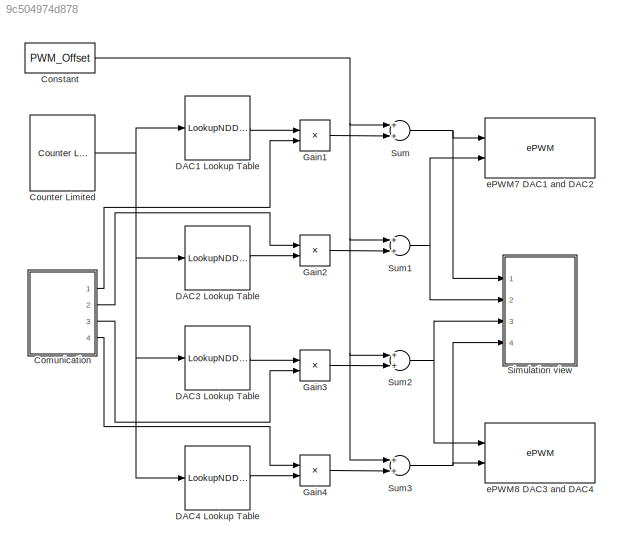
MODEL slx_9c504974d878
KIND model
CONFIG AbsTol = auto
CONFIG FixedStep = auto
CONFIG InitFcn = SignalGen_Settings
CONFIG MaxStep = auto
CONFIG MinStep = auto
CONFIG RelTol = 1e-3
CONFIG SampleTimeConstraint = Unconstrained
CONFIG Solver = FixedStepDiscrete
CONFIG SolverMode = Auto
CONFIG SolverName = FixedStepDiscrete
CONFIG StartTime = 0.0
CONFIG StopTime = 0.0333333
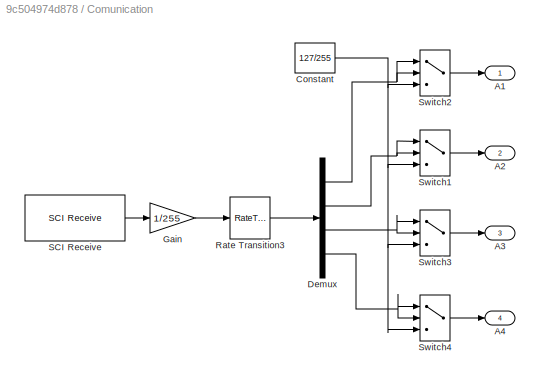
BLOCK [SubSystem] Comunication
  Ports = [0, 4]
  RequestExecContextInheritance = off
  Variant = off
BLOCK [Outport] Comunication/A1
  IconDisplay = Port number
BLOCK [Outport] Comunication/A2
  IconDisplay = Port number
  Port = 2
BLOCK [Outport] Comunication/A3
  IconDisplay = Port number
  Port = 3
BLOCK [Outport] Comunication/A4
  IconDisplay = Port number
  Port = 4
BLOCK [Constant] Comunication/Constant
  Value = 127/255
BLOCK [Demux] Comunication/Demux
  DisplayOption = bar
  Ports = [1, 4]
BLOCK [Gain] Comunication/Gain
  Gain = 1/255
  OutDataTypeStr = Inherit: Inherit via internal rule
  ParamDataTypeStr = Inherit: Inherit via internal rule
  SaturateOnIntegerOverflow = off
BLOCK [RateTransition] Comunication/Rate Transition3
  Integrity = off
BLOCK [Reference] Comunication/SCI Receive  REF=c280xlib/SCI Receive
  Ports = [0, 1]
  SourceBlock = c280xlib/SCI Receive
  SourceType = C28x SCI Receive
BLOCK [Switch] Comunication/Switch1
  Criteria = u2 ~= 0
  InputSameDT = off
  SaturateOnIntegerOverflow = off
BLOCK [Switch] Comunication/Switch2
  Criteria = u2 ~= 0
  InputSameDT = off
  SaturateOnIntegerOverflow = off
BLOCK [Switch] Comunication/Switch3
  Criteria = u2 ~= 0
  InputSameDT = off
  SaturateOnIntegerOverflow = off
BLOCK [Switch] Comunication/Switch4
  Criteria = u2 ~= 0
  InputSameDT = off
  SaturateOnIntegerOverflow = off
BLOCK [Constant] Constant
  Value = PWM_Offset
BLOCK [Reference] Counter Limited  REF=simulink/Sources/Counter
Limited
  Ports = [0, 1]
  SourceBlock = simulink/Sources/Counter\nLimited
  SourceType = Counter Limited
BLOCK [LookupNDDirect] DAC1 Lookup Table
  NumberOfTableDimensions = 1
  Ports = [1, 1]
  Table = DAC1-PWM_Offset
BLOCK [LookupNDDirect] DAC2 Lookup Table
  NumberOfTableDimensions = 1
  Ports = [1, 1]
  Table = DAC2-PWM_Offset
BLOCK [LookupNDDirect] DAC3 Lookup Table 
  NumberOfTableDimensions = 1
  Ports = [1, 1]
  Table = DAC3-PWM_Offset
BLOCK [LookupNDDirect] DAC4 Lookup Table
  NumberOfTableDimensions = 1
  Ports = [1, 1]
  Table = DAC4-PWM_Offset
BLOCK [Product] Gain1
  InputSameDT = off
  OutDataTypeStr = Inherit: Inherit via internal rule
  Ports = [2, 1]
  RndMeth = Floor
  SaturateOnIntegerOverflow = off
BLOCK [Product] Gain2
  InputSameDT = off
  OutDataTypeStr = Inherit: Inherit via internal rule
  Ports = [2, 1]
  RndMeth = Floor
  SaturateOnIntegerOverflow = off
BLOCK [Product] Gain3
  InputSameDT = off
  OutDataTypeStr = Inherit: Inherit via internal rule
  Ports = [2, 1]
  RndMeth = Floor
  SaturateOnIntegerOverflow = off
BLOCK [Product] Gain4
  InputSameDT = off
  OutDataTypeStr = Inherit: Inherit via internal rule
  Ports = [2, 1]
  RndMeth = Floor
  SaturateOnIntegerOverflow = off
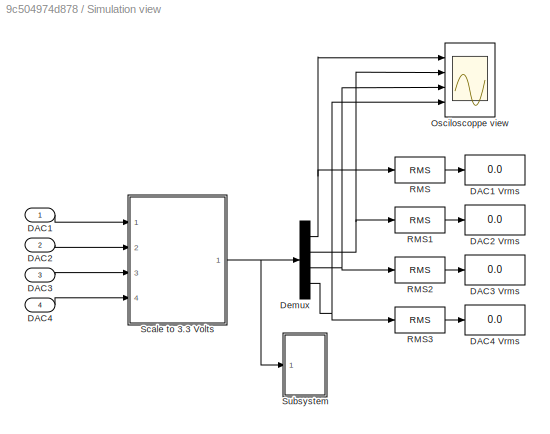
BLOCK [SubSystem] Simulation view
  Ports = [4]
  RequestExecContextInheritance = off
  Variant = off
BLOCK [Inport] Simulation view/DAC1
  IconDisplay = Port number
BLOCK [Display] Simulation view/DAC1 Vrms
  Decimation = 1
  Ports = [1]
BLOCK [Inport] Simulation view/DAC2
  IconDisplay = Port number
  Port = 2
BLOCK [Display] Simulation view/DAC2 Vrms
  Decimation = 1
  Ports = [1]
BLOCK [Inport] Simulation view/DAC3
  IconDisplay = Port number
  Port = 3
BLOCK [Display] Simulation view/DAC3 Vrms
  Decimation = 1
  Ports = [1]
BLOCK [Inport] Simulation view/DAC4
  IconDisplay = Port number
  Port = 4
BLOCK [Display] Simulation view/DAC4 Vrms
  Decimation = 1
  Ports = [1]
BLOCK [Demux] Simulation view/Demux
  DisplayOption = bar
  Ports = [1, 4]
BLOCK [Scope] Simulation view/Osciloscoppe view
  NumInputPorts = 4
  Ports = [4]
  ScopeSpecificationString = Simulink.scopes.TimeScopeBlockCfg('CurrentConfiguration', extmgr.ConfigurationSet(extmgr.Configuration('Core','General UI',true),extmgr.Configuration('Core','Source UI',true),extmgr.Configuration('Sources','WiredSimulink',true,'DataLoggingLimitDataPoints',true,'DataLoggingMaxPoints','500000'),extmgr.Configuration('Visuals','Time Domain',true,'SerializedDisplays',{struct('MinYLimReal','-0.91552','M...<+3621ch>
BLOCK [Reference] Simulation view/RMS  REF=dspstat3/RMS
  Ports = [1, 1]
  SourceBlock = dspstat3/RMS
  SourceType = RMS
  UserDataPersistent = on
BLOCK [Reference] Simulation view/RMS1  REF=dspstat3/RMS
  Ports = [1, 1]
  SourceBlock = dspstat3/RMS
  SourceType = RMS
  UserDataPersistent = on
BLOCK [Reference] Simulation view/RMS2  REF=dspstat3/RMS
  Ports = [1, 1]
  SourceBlock = dspstat3/RMS
  SourceType = RMS
  UserDataPersistent = on
BLOCK [Reference] Simulation view/RMS3  REF=dspstat3/RMS
  Ports = [1, 1]
  SourceBlock = dspstat3/RMS
  SourceType = RMS
  UserDataPersistent = on
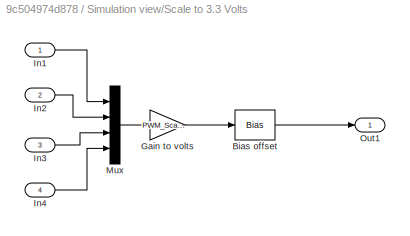
BLOCK [SubSystem] Simulation view/Scale to 3.3 Volts
  Ports = [4, 1]
  RequestExecContextInheritance = off
  Variant = off
BLOCK [Bias] Simulation view/Scale to 3.3 Volts/Bias offset
  Bias = -PWM_Max_Voltage/2
  SaturateOnIntegerOverflow = off
BLOCK [Gain] Simulation view/Scale to 3.3 Volts/Gain to volts
  Gain = PWM_Scale
  OutDataTypeStr = single
  ParamDataTypeStr = Inherit: Inherit via internal rule
  SaturateOnIntegerOverflow = off
BLOCK [Inport] Simulation view/Scale to 3.3 Volts/In1
  IconDisplay = Port number
BLOCK [Inport] Simulation view/Scale to 3.3 Volts/In2
  IconDisplay = Port number
  Port = 2
BLOCK [Inport] Simulation view/Scale to 3.3 Volts/In3
  IconDisplay = Port number
  Port = 3
BLOCK [Inport] Simulation view/Scale to 3.3 Volts/In4
  IconDisplay = Port number
  Port = 4
BLOCK [Mux] Simulation view/Scale to 3.3 Volts/Mux
  DisplayOption = bar
  Ports = [4, 1]
BLOCK [Outport] Simulation view/Scale to 3.3 Volts/Out1
  IconDisplay = Port number
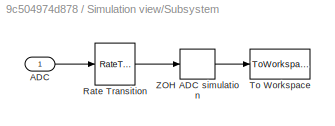
BLOCK [SubSystem] Simulation view/Subsystem
  Ports = [1]
  RequestExecContextInheritance = off
  Variant = off
BLOCK [Inport] Simulation view/Subsystem/ADC
  IconDisplay = Port number
BLOCK [RateTransition] Simulation view/Subsystem/Rate Transition
  Integrity = off
BLOCK [ToWorkspace] Simulation view/Subsystem/To Workspace
  FixptAsFi = on
  MaxDataPoints = inf
  Ports = [1]
  SampleTime = -1
  Save2DSignal = 3-D array (concatenate along third dimension)
  SaveFormat = Structure With Time
  VariableName = out
BLOCK [ZeroOrderHold] Simulation view/Subsystem/ZOH ADC simulation
  SampleTime = 1/(60*256)
BLOCK [Sum] Sum
  AccumDataTypeStr = Inherit: Same as first input
  InputSameDT = off
  OutDataTypeStr = uint16
  Ports = [2, 1]
  SaturateOnIntegerOverflow = off
BLOCK [Sum] Sum1
  InputSameDT = off
  OutDataTypeStr = uint16
  Ports = [2, 1]
  SaturateOnIntegerOverflow = off
BLOCK [Sum] Sum2
  InputSameDT = off
  OutDataTypeStr = uint16
  Ports = [2, 1]
  SaturateOnIntegerOverflow = off
BLOCK [Sum] Sum3
  InputSameDT = off
  OutDataTypeStr = uint16
  Ports = [2, 1]
  SaturateOnIntegerOverflow = off
BLOCK [Reference] ePWM7 DAC1 and DAC2  REF=c2802xlib/ePWM
  Ports = [2]
  SourceBlock = c2802xlib/ePWM
  SourceType = C2802x/03x/05x/06x/M3x/37x/07x ePWM
  UserDataPersistent = on
BLOCK [Reference] ePWM8 DAC3 and DAC4  REF=c2802xlib/ePWM
  Ports = [2]
  SourceBlock = c2802xlib/ePWM
  SourceType = C2802x/03x/05x/06x/M3x/37x/07x ePWM
  UserDataPersistent = on
NET Comunication/Constant:1 -> Comunication/Switch1:3, Comunication/Switch2:3, Comunication/Switch3:3, Comunication/Switch4:3
NET Comunication/Demux:1 -> Comunication/Switch2:1, Comunication/Switch2:2
NET Comunication/Demux:2 -> Comunication/Switch1:1, Comunication/Switch1:2
NET Comunication/Demux:3 -> Comunication/Switch3:1, Comunication/Switch3:2
NET Comunication/Demux:4 -> Comunication/Switch4:1, Comunication/Switch4:2
LINE Comunication/Gain:1 -> Comunication/Rate Transition3:1
LINE Comunication/Rate Transition3:1 -> Comunication/Demux:1
LINE Comunication/SCI Receive:1 -> Comunication/Gain:1
LINE Comunication/Switch1:1 -> Comunication/A2:1
LINE Comunication/Switch2:1 -> Comunication/A1:1
LINE Comunication/Switch3:1 -> Comunication/A3:1
LINE Comunication/Switch4:1 -> Comunication/A4:1
LINE Comunication:1 -> Gain1:2
LINE Comunication:2 -> Gain2:1
LINE Comunication:3 -> Gain3:2
LINE Comunication:4 -> Gain4:1
NET Constant:1 -> Sum1:1, Sum2:1, Sum3:1, Sum:1
NET Counter Limited:1 -> DAC1 Lookup Table:1, DAC2 Lookup Table:1, DAC3 Lookup Table :1, DAC4 Lookup Table:1
LINE DAC1 Lookup Table:1 -> Gain1:1
LINE DAC2 Lookup Table:1 -> Gain2:2
LINE DAC3 Lookup Table :1 -> Gain3:1
LINE DAC4 Lookup Table:1 -> Gain4:2
LINE Gain1:1 -> Sum:2
LINE Gain2:1 -> Sum1:2
LINE Gain3:1 -> Sum2:2
LINE Gain4:1 -> Sum3:2
LINE Simulation view/DAC1:1 -> Simulation view/Scale to 3.3 Volts:1
LINE Simulation view/DAC2:1 -> Simulation view/Scale to 3.3 Volts:2
LINE Simulation view/DAC3:1 -> Simulation view/Scale to 3.3 Volts:3
LINE Simulation view/DAC4:1 -> Simulation view/Scale to 3.3 Volts:4
NET Simulation view/Demux:1 -> Simulation view/Osciloscoppe view:1, Simulation view/RMS:1
NET Simulation view/Demux:2 -> Simulation view/Osciloscoppe view:2, Simulation view/RMS1:1
NET Simulation view/Demux:3 -> Simulation view/Osciloscoppe view:3, Simulation view/RMS2:1
NET Simulation view/Demux:4 -> Simulation view/Osciloscoppe view:4, Simulation view/RMS3:1
LINE Simulation view/RMS1:1 -> Simulation view/DAC2 Vrms:1
LINE Simulation view/RMS2:1 -> Simulation view/DAC3 Vrms:1
LINE Simulation view/RMS3:1 -> Simulation view/DAC4 Vrms:1
LINE Simulation view/RMS:1 -> Simulation view/DAC1 Vrms:1
LINE Simulation view/Scale to 3.3 Volts/Bias offset:1 -> Simulation view/Scale to 3.3 Volts/Out1:1
LINE Simulation view/Scale to 3.3 Volts/Gain to volts:1 -> Simulation view/Scale to 3.3 Volts/Bias offset:1
LINE Simulation view/Scale to 3.3 Volts/In1:1 -> Simulation view/Scale to 3.3 Volts/Mux:1
LINE Simulation view/Scale to 3.3 Volts/In2:1 -> Simulation view/Scale to 3.3 Volts/Mux:2
LINE Simulation view/Scale to 3.3 Volts/In3:1 -> Simulation view/Scale to 3.3 Volts/Mux:3
LINE Simulation view/Scale to 3.3 Volts/In4:1 -> Simulation view/Scale to 3.3 Volts/Mux:4
LINE Simulation view/Scale to 3.3 Volts/Mux:1 -> Simulation view/Scale to 3.3 Volts/Gain to volts:1
NET Simulation view/Scale to 3.3 Volts:1 -> Simulation view/Demux:1, Simulation view/Subsystem:1
LINE Simulation view/Subsystem/ADC:1 -> Simulation view/Subsystem/Rate Transition:1
LINE Simulation view/Subsystem/Rate Transition:1 -> Simulation view/Subsystem/ZOH ADC simulation:1
LINE Simulation view/Subsystem/ZOH ADC simulation:1 -> Simulation view/Subsystem/To Workspace:1
NET Sum1:1 -> Simulation view:2, ePWM7 DAC1 and DAC2:2
NET Sum2:1 -> Simulation view:3, ePWM8 DAC3 and DAC4:1
NET Sum3:1 -> Simulation view:4, ePWM8 DAC3 and DAC4:2
NET Sum:1 -> Simulation view:1, ePWM7 DAC1 and DAC2:1
note: NET lines group one-source signal fan-out (src -> all destinations, sorted); 1:1 wires keep LINE
